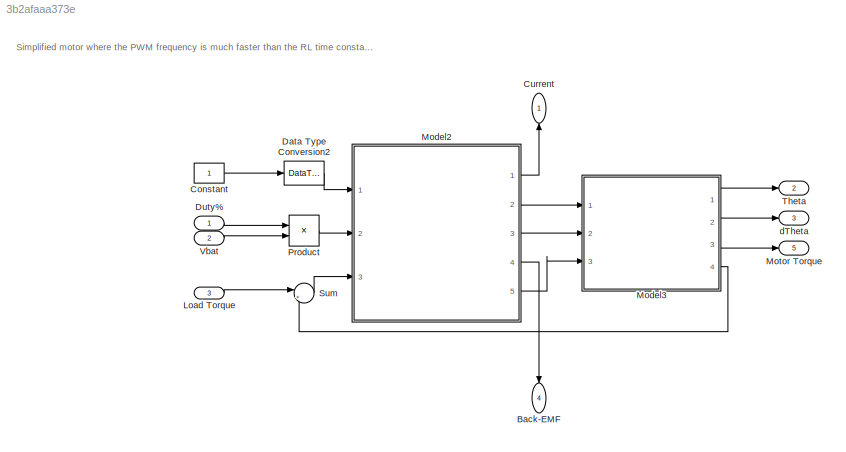
MODEL slx_3b2afaaa373e
KIND model
CONFIG AbsTol = auto
CONFIG EnableMultiTasking = off
CONFIG FixedStep = 1e-5
CONFIG MaxStep = auto
CONFIG MinStep = auto
CONFIG RelTol = 1e-3
CONFIG SampleTimeConstraint = Unconstrained
CONFIG Solver = VariableStepAuto
CONFIG SolverName = VariableStepAuto
CONFIG StartTime = 0.0
CONFIG StopTime = 10.0
BLOCK [Outport] Back-EMF
  IconDisplay = Port number
  Port = 4
BLOCK [Constant] Constant
BLOCK [Outport] Current
  IconDisplay = Port number
BLOCK [DataTypeConversion] Data Type Conversion2
  RndMeth = Round
  SaturateOnIntegerOverflow = off
BLOCK [Inport] Duty%
  IconDisplay = Port number
  OutDataTypeStr = double
BLOCK [Inport] Load Torque
  IconDisplay = Port number
  OutDataTypeStr = double
  Port = 3
BLOCK [ModelReference] Model2
  ModelNameDialog = DC_Motor_BrakeMode
  ModelReferenceVersion = 1.33
  Ports = [3, 5]
BLOCK [ModelReference] Model3
  ModelNameDialog = Gearbox
  ModelReferenceVersion = 1.7
  Ports = [3, 4]
BLOCK [Outport] Motor Torque
  IconDisplay = Port number
  Port = 5
BLOCK [Product] Product
  InputSameDT = off
  OutDataTypeStr = Inherit: Inherit via internal rule
  Ports = [2, 1]
  RndMeth = Floor
  SaturateOnIntegerOverflow = off
BLOCK [Sum] Sum
  IconShape = round
  InputSameDT = off
  Inputs = |++
  OutDataTypeStr = Inherit: Inherit via internal rule
  Ports = [2, 1]
  SaturateOnIntegerOverflow = off
BLOCK [Outport] Theta
  IconDisplay = Port number
  Port = 2
BLOCK [Inport] Vbat
  IconDisplay = Port number
  OutDataTypeStr = double
  Port = 2
BLOCK [Outport] dTheta
  IconDisplay = Port number
  Port = 3
ANNOTATION (root): Simplified motor where the PWM frequency is much faster than the RL time constant, such that the switching can be neglected
LINE Constant:1 -> Data Type Conversion2:1
LINE Data Type Conversion2:1 -> Model2:1
LINE Duty%:1 -> Product:1
LINE Load Torque:1 -> Sum:1
LINE Model2:1 -> Current:1
LINE Model2:2 -> Model3:1
LINE Model2:3 -> Model3:2
LINE Model2:4 -> Back-EMF:1
LINE Model2:5 -> Model3:3
LINE Model3:1 -> Theta:1
LINE Model3:2 -> dTheta:1
LINE Model3:3 -> Motor Torque:1
LINE Model3:4 -> Sum:2
LINE Product:1 -> Model2:2
LINE Sum:1 -> Model2:3
LINE Vbat:1 -> Product:2
